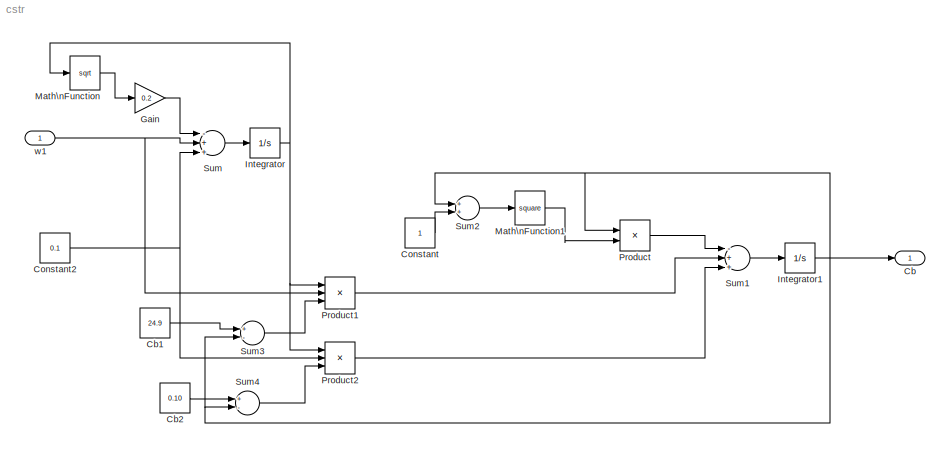
MODEL cstr
KIND model
BLOCK [Outport] Cb
  IconDisplay = Port number
  SID = 19
BLOCK [Constant] Cb1
  SID = 2
  Value = 24.9
BLOCK [Constant] Cb2
  SID = 3
  Value = 0.10
BLOCK [Constant] Constant
  SID = 4
BLOCK [Constant] Constant2
  SID = 5
  Value = 0.1
BLOCK [Gain] Gain
  Gain = 0.2
  SID = 6
BLOCK [Integrator] Integrator
  InitialCondition = 30
  LimitOutput = on
  LowerSaturationLimit = 1
  Ports = [1, 1]
  SID = 7
BLOCK [Integrator] Integrator1
  InitialCondition = 22
  Ports = [1, 1]
  SID = 8
BLOCK [Math] Math\nFunction
  Operator = sqrt
  Ports = [1, 1]
  SID = 9
BLOCK [Math] Math\nFunction1
  Operator = square
  Ports = [1, 1]
  SID = 10
BLOCK [Product] Product
  Inputs = */
  Ports = [2, 1]
  SID = 11
BLOCK [Product] Product1
  Inputs = /**
  Ports = [3, 1]
  SID = 12
BLOCK [Product] Product2
  Inputs = /**
  Ports = [3, 1]
  SID = 13
BLOCK [Sum] Sum
  Inputs = -++
  Ports = [3, 1]
  SID = 14
BLOCK [Sum] Sum1
  Inputs = -++
  Ports = [3, 1]
  SID = 15
BLOCK [Sum] Sum2
  Ports = [2, 1]
  SID = 16
BLOCK [Sum] Sum3
  Inputs = +-
  Ports = [2, 1]
  SID = 17
BLOCK [Sum] Sum4
  Inputs = +-
  Ports = [2, 1]
  SID = 18
BLOCK [Inport] w1
  IconDisplay = Port number
  SID = 1
LINE Cb1:1 -> Sum3:1
LINE Cb2:1 -> Sum4:1
NET Constant2:1 -> Product2:2, Sum:3
LINE Constant:1 -> Sum2:2
LINE Gain:1 -> Sum:1
NET Integrator1:1 -> Cb:1, Product:1, Sum2:1, Sum3:2, Sum4:2
NET Integrator:1 -> Math\nFunction:1, Product1:1, Product2:1
LINE Math\nFunction1:1 -> Product:2
LINE Math\nFunction:1 -> Gain:1
LINE Product1:1 -> Sum1:2
LINE Product2:1 -> Sum1:3
LINE Product:1 -> Sum1:1
LINE Sum1:1 -> Integrator1:1
LINE Sum2:1 -> Math\nFunction1:1
LINE Sum3:1 -> Product1:3
LINE Sum4:1 -> Product2:3
LINE Sum:1 -> Integrator:1
NET w1:1 -> Product1:2, Sum:2
note: NET lines group one-source signal fan-out (src -> all destinations, sorted); 1:1 wires keep LINE
